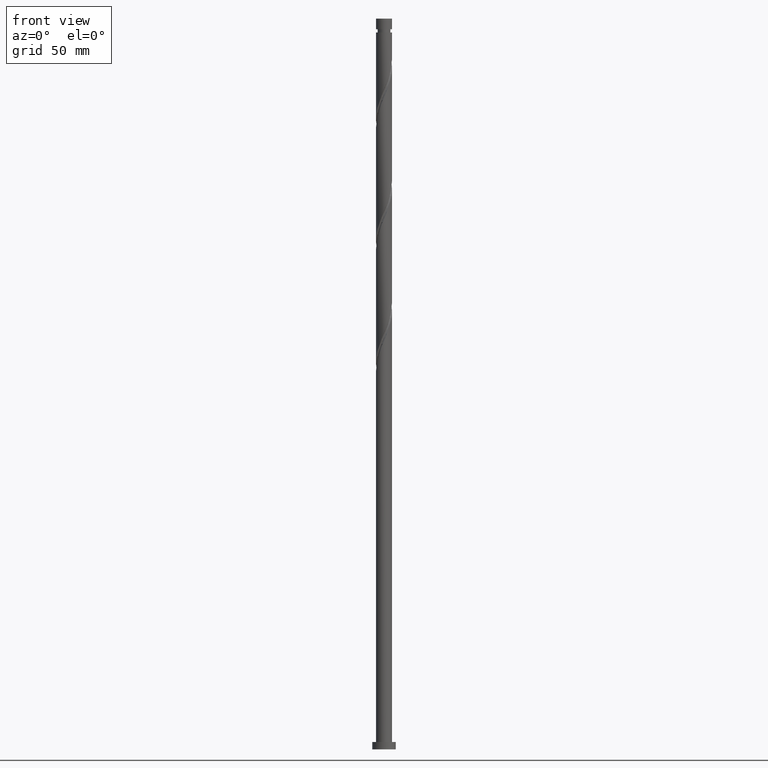
[diagram: clean part render]
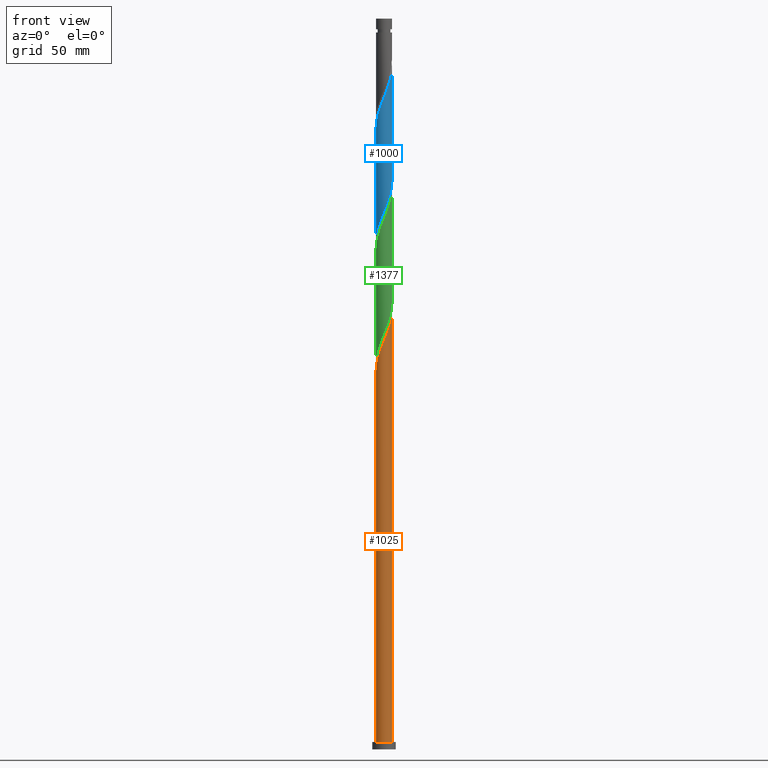
[diagram: same view with three faces highlighted in distinct colors, each labeled with its STEP entity id]
A machine part, front view with three faces highlighted in distinct colors.
Their STEP definitions:

[orange] entity #1025 — the highlighted cylindrical surface (edge-blend (fillet) strip) has radius 5.5 mm, axis along (-0, -0, -1).
#9 = VERTEX_POINT ( 'NONE', #334 ) ;
#10 = CARTESIAN_POINT ( 'NONE',  ( 4.884380654232723273, -2.585781788888787514, 293.8996440127714322 ) ) ;
#21 = CARTESIAN_POINT ( 'NONE',  ( -5.282202520096286769, -1.625354844912403340, 262.6496440127713754 ) ) ;
#113 = VERTEX_POINT ( 'NONE', #1037 ) ;
#126 = LINE ( 'NONE', #1419, #1482 ) ;
#173 = CARTESIAN_POINT ( 'NONE',  ( -3.488992111560462295, -4.286067647700003036, 270.4621440127713186 ) ) ;
#183 = CARTESIAN_POINT ( 'NONE',  ( 2.124992771417277826, -5.072908999915568984, 284.7850606794381747 ) ) ;
#190 = FACE_OUTER_BOUND ( 'NONE', #1524, .T. ) ;
#196 = CIRCLE ( 'NONE', #570, 5.500000000000000000 ) ;
#309 = LINE ( 'NONE', #1405, #773 ) ;
#334 = CARTESIAN_POINT ( 'NONE',  ( 5.500000000000000000, 6.735557395310442023E-16, 5.000000000000000000 ) ) ;
#336 = CARTESIAN_POINT ( 'NONE',  ( -5.497797479903720586, -0.5636175167221706417, 260.0454773461046898 ) ) ;
#348 = CARTESIAN_POINT ( 'NONE',  ( -4.560868951884520683, -3.073837081521374248, 266.5558940127713754 ) ) ;
#357 = VERTEX_POINT ( 'NONE', #1067 ) ;
#358 = CARTESIAN_POINT ( 'NONE',  ( 1.625354844912402896, -5.282202520096286769, 283.4829773461046329 ) ) ;
#363 = DIRECTION ( 'NONE',  ( -1.000000000000000000, 0.000000000000000000, 0.000000000000000000 ) ) ;
#427 = AXIS2_PLACEMENT_3D ( 'NONE', #1335, #1800, #363 ) ;
#497 = CARTESIAN_POINT ( 'NONE',  ( 5.500000000000003553, -6.743336730817932239E-15, 300.3573637014411588 ) ) ;
#518 = CARTESIAN_POINT ( 'NONE',  ( 0.02191910008341017499, -5.499956322831264011, 279.5767273461047466 ) ) ;
#531 = EDGE_CURVE ( 'NONE', #357, #978, #126, .T. ) ;
#570 = AXIS2_PLACEMENT_3D ( 'NONE', #937, #1300, #1590 ) ;
#600 = DIRECTION ( 'NONE',  ( -0.000000000000000000, -0.000000000000000000, -1.000000000000000000 ) ) ;
#617 = EDGE_CURVE ( 'NONE', #978, #9, #196, .T. ) ;
#625 =( BOUNDED_CURVE ( )  B_SPLINE_CURVE ( 2, ( #1012, #1042, #1783, #336, #1771, #21, #1470, #1321, #348, #976, #682, #173, #1794, #1958, #1159, #2103, #658, #1311, #518, #1626, #669, #358, #183, #987, #824, #1636, #1302, #1147, #834, #10, #1478, #1935, #1136, #1946, #497 ),
 .UNSPECIFIED., .F., .T. ) 
 B_SPLINE_CURVE_WITH_KNOTS ( ( 3, 2, 2, 2, 2, 2, 2, 2, 2, 2, 2, 2, 2, 2, 2, 2, 2, 3 ),
 ( 0.05452869021808723349, 0.05468750000000000000, 0.06250000000000000000, 0.07031250000000000000, 0.07812500000000000000, 0.08593750000000000000, 0.09375000000000000000, 0.1015625000000000000, 0.1093750000000000000, 0.1171875000000000000, 0.1250000000000000000, 0.1328125000000000000, 0.1406250000000000000, 0.1484375000000000000, 0.1562500000000000000, 0.1640625000000000000, 0.1718750000000000000, 0.1795286902180868449 ),
 .UNSPECIFIED. ) 
 CURVE ( )  GEOMETRIC_REPRESENTATION_ITEM ( )  RATIONAL_B_SPLINE_CURVE ( ( 0.9089165573359533346, 0.9090019243628580936, 0.9090909090909499168, 0.9047133878838560239, 0.9090909090909499168, 0.9047133878838560239, 0.9090909090909499168, 0.9047133878838560239, 0.9090909090909499168, 0.9047133878838560239, 0.9090909090909499168, 0.9047133878838560239, 0.9090909090909499168, 0.9047133878838560239, 0.9090909090909499168, 0.9047133878838560239, 0.9090909090909499168, 0.9047133878838560239, 0.9090909090909499168, 0.9047133878838560239, 0.9090909090909499168, 0.9047133878838560239, 0.9090909090909499168, 0.9047133878838560239, 0.9090909090909499168, 0.9047133878838560239, 0.9090909090909499168, 0.9047133878838560239, 0.9090909090909499168, 0.9047133878838560239, 0.9090909090909499168, 0.9047133878838560239, 0.9090909090909499168, 0.9048023726119480692, 0.9089165573359528905 ) ) 
 REPRESENTATION_ITEM ( '' )  );
#658 = CARTESIAN_POINT ( 'NONE',  ( -1.051490319374297044, -5.398552408587157458, 276.9725606794381179 ) ) ;
#669 = CARTESIAN_POINT ( 'NONE',  ( 1.094486180817286991, -5.390000000000004121, 282.1808940127714891 ) ) ;
#675 = CARTESIAN_POINT ( 'NONE',  ( -5.500000000000000000, 0.000000000000000000, 5.000000000000000000 ) ) ;
#682 = CARTESIAN_POINT ( 'NONE',  ( -3.873557267797328674, -3.904555556410300721, 269.1600606794380610 ) ) ;
#773 = VECTOR ( 'NONE', #600, 1000.000000000000000 ) ;
#776 = EDGE_CURVE ( 'NONE', #113, #9, #309, .T. ) ;
#778 = ORIENTED_EDGE ( 'NONE', *, *, #1075, .F. ) ;
#794 = ORIENTED_EDGE ( 'NONE', *, *, #531, .T. ) ;
#824 = CARTESIAN_POINT ( 'NONE',  ( 3.073837081521374248, -4.560868951884521572, 287.3892273461047466 ) ) ;
#834 = CARTESIAN_POINT ( 'NONE',  ( 4.585224150966364931, -3.037386950224624904, 292.5975606794381179 ) ) ;
#921 = DIRECTION ( 'NONE',  ( -0.000000000000000000, -0.000000000000000000, -1.000000000000000000 ) ) ;
#937 = CARTESIAN_POINT ( 'NONE',  ( 0.000000000000000000, 0.000000000000000000, 5.000000000000000000 ) ) ;
#976 = CARTESIAN_POINT ( 'NONE',  ( -4.258122424034190168, -3.523043465120600182, 267.8579773461046898 ) ) ;
#978 = VERTEX_POINT ( 'NONE', #675 ) ;
#987 = CARTESIAN_POINT ( 'NONE',  ( 2.624630697922147871, -4.863615479734852087, 286.0871440127713754 ) ) ;
#1012 = CARTESIAN_POINT ( 'NONE',  ( -5.500000000000004441, 4.672621665052668578E-15, 258.6906970347745869 ) ) ;
#1025 = ADVANCED_FACE ( 'NONE', ( #190 ), #1643, .T. ) ;
#1037 = CARTESIAN_POINT ( 'NONE',  ( 5.500000000000003553, -6.743336730817932239E-15, 300.3573637014411588 ) ) ;
#1042 = CARTESIAN_POINT ( 'NONE',  ( -5.500000000000005329, -0.01095959355843807541, 258.7170505892918868 ) ) ;
#1067 = CARTESIAN_POINT ( 'NONE',  ( -5.500000000000004441, 4.672621665052668578E-15, 258.6906970347745869 ) ) ;
#1075 = EDGE_CURVE ( 'NONE', #357, #113, #625, .T. ) ;
#1136 = CARTESIAN_POINT ( 'NONE',  ( 5.398552408587157458, -1.051490319374299265, 297.8058940127712617 ) ) ;
#1147 = CARTESIAN_POINT ( 'NONE',  ( 4.286067647700002148, -3.488992111560463183, 291.2954773461047466 ) ) ;
#1159 = CARTESIAN_POINT ( 'NONE',  ( -2.084491555541014840, -5.089685152824117154, 274.3683940127714891 ) ) ;
#1300 = DIRECTION ( 'NONE',  ( 0.000000000000000000, 0.000000000000000000, 1.000000000000000000 ) ) ;
#1302 = CARTESIAN_POINT ( 'NONE',  ( 3.904555556410300721, -3.873557267797329562, 289.9933940127714322 ) ) ;
#1311 = CARTESIAN_POINT ( 'NONE',  ( -0.5197793165553479255, -5.502115165758805659, 278.2746440127714891 ) ) ;
#1321 = CARTESIAN_POINT ( 'NONE',  ( -4.863615479734851199, -2.624630697922147871, 265.2538106794380610 ) ) ;
#1335 = CARTESIAN_POINT ( 'NONE',  ( 0.000000000000000000, 0.000000000000000000, 500.0000000000000000 ) ) ;
#1405 = CARTESIAN_POINT ( 'NONE',  ( 5.500000000000000000, 6.735557395310442023E-16, 500.0000000000000000 ) ) ;
#1419 = CARTESIAN_POINT ( 'NONE',  ( -5.500000000000000000, 0.000000000000000000, 500.0000000000000000 ) ) ;
#1470 = CARTESIAN_POINT ( 'NONE',  ( -5.072908999915568984, -2.124992771417276494, 263.9517273461046898 ) ) ;
#1471 = ORIENTED_EDGE ( 'NONE', *, *, #776, .F. ) ;
#1478 = CARTESIAN_POINT ( 'NONE',  ( 5.089685152824117154, -2.084491555541014840, 295.2017273461048035 ) ) ;
#1482 = VECTOR ( 'NONE', #921, 1000.000000000000000 ) ;
#1524 = EDGE_LOOP ( 'NONE', ( #1471, #778, #794, #1735 ) ) ;
#1590 = DIRECTION ( 'NONE',  ( 1.000000000000000000, 0.000000000000000000, 0.000000000000000000 ) ) ;
#1626 = CARTESIAN_POINT ( 'NONE',  ( 0.5636175167221705307, -5.497797479903720586, 280.8788106794381179 ) ) ;
#1636 = CARTESIAN_POINT ( 'NONE',  ( 3.523043465120600182, -4.258122424034191056, 288.6913106794381747 ) ) ;
#1643 = CYLINDRICAL_SURFACE ( 'NONE', #427, 5.500000000000000000 ) ;
#1735 = ORIENTED_EDGE ( 'NONE', *, *, #617, .T. ) ;
#1771 = CARTESIAN_POINT ( 'NONE',  ( -5.390000000000004121, -1.094486180817287213, 261.3475606794381179 ) ) ;
#1783 = CARTESIAN_POINT ( 'NONE',  ( -5.499956322831264011, -0.02191910008341166338, 258.7433940127714322 ) ) ;
#1794 = CARTESIAN_POINT ( 'NONE',  ( -3.037386950224624904, -4.585224150966364931, 271.7642273461048035 ) ) ;
#1800 = DIRECTION ( 'NONE',  ( -0.000000000000000000, -0.000000000000000000, -1.000000000000000000 ) ) ;
#1935 = CARTESIAN_POINT ( 'NONE',  ( 5.294989651415510146, -1.583201322193245941, 296.5038106794380610 ) ) ;
#1946 = CARTESIAN_POINT ( 'NONE',  ( 5.500000000000001776, -0.5306389821094230630, 299.0813835960251481 ) ) ;
#1958 = CARTESIAN_POINT ( 'NONE',  ( -2.585781788888784849, -4.884380654232723273, 273.0663106794381179 ) ) ;
#2103 = CARTESIAN_POINT ( 'NONE',  ( -1.583201322193245275, -5.294989651415510146, 275.6704773461047466 ) ) ;

[blue] entity #1000 — the highlighted cylindrical surface (edge-blend (fillet) strip) has radius 5.5 mm, axis along (-0, -0, -1).
#8 = ORIENTED_EDGE ( 'NONE', *, *, #1392, .F. ) ;
#16 = CARTESIAN_POINT ( 'NONE',  ( 5.500000000000000000, 3.802213082053248887E-15, 389.0044243241015351 ) ) ;
#39 = CARTESIAN_POINT ( 'NONE',  ( -5.500000000000000000, 0.000000000000000000, 500.0000000000000000 ) ) ;
#40 = CARTESIAN_POINT ( 'NONE',  ( 5.389999999999999680, -1.094486180817288101, 386.3475606794380042 ) ) ;
#59 = CARTESIAN_POINT ( 'NONE',  ( -0.5197793165553479255, -5.502115165758805659, 444.9413106794379473 ) ) ;
#64 = CARTESIAN_POINT ( 'NONE',  ( 3.873557267797324233, -3.904555556410298500, 378.5350606794382315 ) ) ;
#68 =( BOUNDED_CURVE ( )  B_SPLINE_CURVE ( 2, ( #16, #1965, #1495, #1955, #40, #524, #1166, #1801, #1553, #1514, #64, #1355, #76, #1996, #1366, #550, #561, #1271, #134, #1930, #265, #1284, #440, #1920, #1720, #2057, #1079, #279, #1610, #906, #798, #1570, #610, #1403, #1255 ),
 .UNSPECIFIED., .F., .T. ) 
 B_SPLINE_CURVE_WITH_KNOTS ( ( 3, 2, 2, 2, 2, 2, 2, 2, 2, 2, 2, 2, 2, 2, 2, 2, 2, 3 ),
 ( 0.5545286902180870392, 0.5546875000000000000, 0.5625000000000000000, 0.5703125000000000000, 0.5781250000000000000, 0.5859375000000000000, 0.5937500000000000000, 0.6015625000000000000, 0.6093750000000000000, 0.6171875000000000000, 0.6250000000000000000, 0.6328125000000000000, 0.6406250000000000000, 0.6484375000000000000, 0.6562500000000000000, 0.6640625000000000000, 0.6718750000000000000, 0.6795286902180887045 ),
 .UNSPECIFIED. ) 
 CURVE ( )  GEOMETRIC_REPRESENTATION_ITEM ( )  RATIONAL_B_SPLINE_CURVE ( ( 0.9089165573359484496, 0.9090019243628533196, 0.9090909090909452539, 0.9047133878838512500, 0.9090909090909452539, 0.9047133878838512500, 0.9090909090909452539, 0.9047133878838512500, 0.9090909090909452539, 0.9047133878838512500, 0.9090909090909452539, 0.9047133878838512500, 0.9090909090909452539, 0.9047133878838512500, 0.9090909090909452539, 0.9047133878838512500, 0.9090909090909452539, 0.9047133878838512500, 0.9090909090909452539, 0.9047133878838512500, 0.9090909090909452539, 0.9047133878838512500, 0.9090909090909452539, 0.9047133878838512500, 0.9090909090909452539, 0.9047133878838512500, 0.9090909090909452539, 0.9047133878838512500, 0.9090909090909452539, 0.9047133878838512500, 0.9090909090909452539, 0.9047133878838512500, 0.9090909090909452539, 0.9048023726119421850, 0.9089165573359502259 ) ) 
 REPRESENTATION_ITEM ( '' )  );
#70 = CARTESIAN_POINT ( 'NONE',  ( 3.523043465120600182, -4.258122424034191056, 455.3579773461046329 ) ) ;
#76 = CARTESIAN_POINT ( 'NONE',  ( 3.037386950224620463, -4.585224150966358714, 375.9308940127714322 ) ) ;
#87 = CARTESIAN_POINT ( 'NONE',  ( -5.072908999915568984, -2.124992771417276494, 430.6183940127714322 ) ) ;
#130 = VERTEX_POINT ( 'NONE', #1371 ) ;
#132 = DIRECTION ( 'NONE',  ( -0.000000000000000000, -0.000000000000000000, -1.000000000000000000 ) ) ;
#134 = CARTESIAN_POINT ( 'NONE',  ( -0.02191910008341204155, -5.499956322831258682, 368.1183940127714891 ) ) ;
#153 = ORIENTED_EDGE ( 'NONE', *, *, #1122, .F. ) ;
#193 = CARTESIAN_POINT ( 'NONE',  ( 5.500000000000000000, 3.802213082053248887E-15, 389.0044243241015351 ) ) ;
#207 = CARTESIAN_POINT ( 'NONE',  ( -3.873557267797328674, -3.904555556410300721, 435.8267273461046329 ) ) ;
#227 = CARTESIAN_POINT ( 'NONE',  ( -2.084491555541014840, -5.089685152824117154, 441.0350606794380042 ) ) ;
#252 = CARTESIAN_POINT ( 'NONE',  ( 5.500000000000008882, -0.5306389821093718817, 465.7480502626920611 ) ) ;
#265 = CARTESIAN_POINT ( 'NONE',  ( -1.094486180817287657, -5.389999999999999680, 365.5142273461047466 ) ) ;
#268 = LINE ( 'NONE', #944, #467 ) ;
#279 = CARTESIAN_POINT ( 'NONE',  ( -4.286067647699998595, -3.488992111560460074, 356.3996440127714322 ) ) ;
#354 = CARTESIAN_POINT ( 'NONE',  ( 0.000000000000000000, 0.000000000000000000, 500.0000000000000000 ) ) ;
#372 = AXIS2_PLACEMENT_3D ( 'NONE', #354, #699, #991 ) ;
#440 = CARTESIAN_POINT ( 'NONE',  ( -2.124992771417276494, -5.072908999915564543, 362.9100606794381747 ) ) ;
#467 = VECTOR ( 'NONE', #1428, 1000.000000000000000 ) ;
#478 = CARTESIAN_POINT ( 'NONE',  ( 5.500000000000005329, 9.188681614961969958E-16, 467.0240303681078444 ) ) ;
#524 = CARTESIAN_POINT ( 'NONE',  ( 5.282202520096280551, -1.625354844912400898, 385.0454773461047466 ) ) ;
#529 = CARTESIAN_POINT ( 'NONE',  ( -4.258122424034190168, -3.523043465120600182, 434.5246440127713186 ) ) ;
#536 = CARTESIAN_POINT ( 'NONE',  ( -5.390000000000004121, -1.094486180817287213, 428.0142273461047466 ) ) ;
#545 = CARTESIAN_POINT ( 'NONE',  ( 1.625354844912402896, -5.282202520096286769, 450.1496440127713186 ) ) ;
#550 = CARTESIAN_POINT ( 'NONE',  ( 1.583201322193242389, -5.294989651415503928, 372.0246440127713754 ) ) ;
#554 = CARTESIAN_POINT ( 'NONE',  ( 4.585224150966364931, -3.037386950224624904, 459.2642273461046898 ) ) ;
#561 = CARTESIAN_POINT ( 'NONE',  ( 1.051490319374294158, -5.398552408587153906, 370.7225606794381179 ) ) ;
#610 = CARTESIAN_POINT ( 'NONE',  ( -5.398552408587152129, -1.051490319374294602, 349.8892273461047466 ) ) ;
#637 = CARTESIAN_POINT ( 'NONE',  ( -5.497797479903720586, -0.5636175167221706417, 426.7121440127713754 ) ) ;
#699 = DIRECTION ( 'NONE',  ( -0.000000000000000000, -0.000000000000000000, -1.000000000000000000 ) ) ;
#706 = CARTESIAN_POINT ( 'NONE',  ( -3.488992111560462295, -4.286067647700003036, 437.1288106794378905 ) ) ;
#723 = CARTESIAN_POINT ( 'NONE',  ( 3.904555556410300721, -3.873557267797329562, 456.6600606794380610 ) ) ;
#733 = CARTESIAN_POINT ( 'NONE',  ( -1.051490319374297044, -5.398552408587157458, 443.6392273461046329 ) ) ;
#798 = CARTESIAN_POINT ( 'NONE',  ( -5.089685152824111825, -2.084491555541011287, 352.4933940127713186 ) ) ;
#863 = CARTESIAN_POINT ( 'NONE',  ( -5.282202520096286769, -1.625354844912403340, 429.3163106794380042 ) ) ;
#871 = CARTESIAN_POINT ( 'NONE',  ( 3.073837081521374248, -4.560868951884521572, 454.0558940127713754 ) ) ;
#906 = CARTESIAN_POINT ( 'NONE',  ( -4.884380654232720609, -2.585781788888781740, 353.7954773461047466 ) ) ;
#944 = CARTESIAN_POINT ( 'NONE',  ( 5.500000000000000000, 6.735557395310442023E-16, 500.0000000000000000 ) ) ;
#991 = DIRECTION ( 'NONE',  ( -1.000000000000000000, 0.000000000000000000, 0.000000000000000000 ) ) ;
#1000 = ADVANCED_FACE ( 'NONE', ( #1954 ), #1791, .T. ) ;
#1008 = CARTESIAN_POINT ( 'NONE',  ( -4.863615479734851199, -2.624630697922147871, 431.9204773461046329 ) ) ;
#1027 = CARTESIAN_POINT ( 'NONE',  ( 2.124992771417277826, -5.072908999915568984, 451.4517273461046898 ) ) ;
#1079 = CARTESIAN_POINT ( 'NONE',  ( -3.904555556410298500, -3.873557267797324233, 357.7017273461047466 ) ) ;
#1122 = EDGE_CURVE ( 'NONE', #130, #2100, #268, .T. ) ;
#1166 = CARTESIAN_POINT ( 'NONE',  ( 5.072908999915563655, -2.124992771417276938, 383.7433940127713754 ) ) ;
#1175 = CARTESIAN_POINT ( 'NONE',  ( -4.560868951884520683, -3.073837081521374248, 433.2225606794380042 ) ) ;
#1189 = EDGE_CURVE ( 'NONE', #1936, #2047, #2017, .T. ) ;
#1200 = CARTESIAN_POINT ( 'NONE',  ( 4.884380654232723273, -2.585781788888787514, 460.5663106794379473 ) ) ;
#1255 = CARTESIAN_POINT ( 'NONE',  ( -5.500000000000000000, 1.958139737257419718E-13, 347.3377576574344516 ) ) ;
#1271 = CARTESIAN_POINT ( 'NONE',  ( 0.5197793165553451500, -5.502115165758797666, 369.4204773461047466 ) ) ;
#1284 = CARTESIAN_POINT ( 'NONE',  ( -1.625354844912403118, -5.282202520096279663, 364.2121440127713754 ) ) ;
#1337 = CARTESIAN_POINT ( 'NONE',  ( -5.500000000000000000, 1.958139737257419718E-13, 347.3377576574343948 ) ) ;
#1341 = CARTESIAN_POINT ( 'NONE',  ( -2.585781788888784849, -4.884380654232723273, 439.7329773461047466 ) ) ;
#1351 = CARTESIAN_POINT ( 'NONE',  ( 0.5636175167221705307, -5.497797479903720586, 447.5454773461046329 ) ) ;
#1355 = CARTESIAN_POINT ( 'NONE',  ( 3.488992111560457410, -4.286067647700001260, 377.2329773461047466 ) ) ;
#1360 = CARTESIAN_POINT ( 'NONE',  ( 4.286067647700002148, -3.488992111560463183, 457.9621440127713186 ) ) ;
#1366 = CARTESIAN_POINT ( 'NONE',  ( 2.084491555541011287, -5.089685152824112713, 373.3267273461048035 ) ) ;
#1371 = CARTESIAN_POINT ( 'NONE',  ( 5.500000000000004441, 9.188681614961969958E-16, 467.0240303681078444 ) ) ;
#1379 = CARTESIAN_POINT ( 'NONE',  ( 5.089685152824117154, -2.084491555541014840, 461.8683940127713754 ) ) ;
#1392 = EDGE_CURVE ( 'NONE', #2100, #2047, #68, .T. ) ;
#1403 = CARTESIAN_POINT ( 'NONE',  ( -5.500000000000020428, -0.5306389821092928338, 348.6137377628506897 ) ) ;
#1420 =( BOUNDED_CURVE ( )  B_SPLINE_CURVE ( 2, ( #1597, #1443, #2083, #637, #536, #863, #87, #1008, #1175, #529, #207, #706, #1833, #1341, #227, #1509, #733, #59, #2012, #1351, #1984, #545, #1027, #1673, #871, #70, #723, #1360, #554, #1200, #1379, #1444, #1766, #252, #478 ),
 .UNSPECIFIED., .F., .T. ) 
 B_SPLINE_CURVE_WITH_KNOTS ( ( 3, 2, 2, 2, 2, 2, 2, 2, 2, 2, 2, 2, 2, 2, 2, 2, 2, 3 ),
 ( 0.5545286902180870392, 0.5546875000000000000, 0.5625000000000000000, 0.5703125000000000000, 0.5781250000000000000, 0.5859375000000000000, 0.5937500000000000000, 0.6015625000000000000, 0.6093750000000000000, 0.6171875000000000000, 0.6250000000000000000, 0.6328125000000000000, 0.6406250000000000000, 0.6484375000000000000, 0.6562500000000000000, 0.6640625000000000000, 0.6718750000000000000, 0.6795286902180875943 ),
 .UNSPECIFIED. ) 
 CURVE ( )  GEOMETRIC_REPRESENTATION_ITEM ( )  RATIONAL_B_SPLINE_CURVE ( ( 0.9089165573359532235, 0.9090019243628580936, 0.9090909090909499168, 0.9047133878838560239, 0.9090909090909499168, 0.9047133878838560239, 0.9090909090909499168, 0.9047133878838560239, 0.9090909090909499168, 0.9047133878838560239, 0.9090909090909499168, 0.9047133878838560239, 0.9090909090909499168, 0.9047133878838560239, 0.9090909090909499168, 0.9047133878838560239, 0.9090909090909499168, 0.9047133878838560239, 0.9090909090909499168, 0.9047133878838560239, 0.9090909090909499168, 0.9047133878838560239, 0.9090909090909499168, 0.9047133878838560239, 0.9090909090909499168, 0.9047133878838560239, 0.9090909090909499168, 0.9047133878838560239, 0.9090909090909499168, 0.9047133878838560239, 0.9090909090909499168, 0.9047133878838560239, 0.9090909090909499168, 0.9048023726119476251, 0.9089165573359537786 ) ) 
 REPRESENTATION_ITEM ( '' )  );
#1428 = DIRECTION ( 'NONE',  ( -0.000000000000000000, -0.000000000000000000, -1.000000000000000000 ) ) ;
#1443 = CARTESIAN_POINT ( 'NONE',  ( -5.500000000000005329, -0.01095959355842466600, 425.3837172559582882 ) ) ;
#1444 = CARTESIAN_POINT ( 'NONE',  ( 5.294989651415510146, -1.583201322193245941, 463.1704773461046329 ) ) ;
#1495 = CARTESIAN_POINT ( 'NONE',  ( 5.499956322831258682, -0.02191910008341246135, 388.9517273461047466 ) ) ;
#1509 = CARTESIAN_POINT ( 'NONE',  ( -1.583201322193245275, -5.294989651415510146, 442.3371440127713186 ) ) ;
#1514 = CARTESIAN_POINT ( 'NONE',  ( 4.258122424034185727, -3.523043465120597517, 379.8371440127714322 ) ) ;
#1553 = CARTESIAN_POINT ( 'NONE',  ( 4.560868951884516243, -3.073837081521375136, 381.1392273461046329 ) ) ;
#1565 = ORIENTED_EDGE ( 'NONE', *, *, #1189, .T. ) ;
#1570 = CARTESIAN_POINT ( 'NONE',  ( -5.294989651415505705, -1.583201322193242611, 351.1913106794380610 ) ) ;
#1597 = CARTESIAN_POINT ( 'NONE',  ( -5.500000000000005329, -2.985855567377094265E-15, 425.3573637014411020 ) ) ;
#1610 = CARTESIAN_POINT ( 'NONE',  ( -4.585224150966357826, -3.037386950224620907, 355.0975606794380610 ) ) ;
#1628 = EDGE_CURVE ( 'NONE', #1936, #130, #1420, .T. ) ;
#1673 = CARTESIAN_POINT ( 'NONE',  ( 2.624630697922147871, -4.863615479734852087, 452.7538106794380042 ) ) ;
#1720 = CARTESIAN_POINT ( 'NONE',  ( -3.073837081521372472, -4.560868951884518907, 360.3058940127714322 ) ) ;
#1757 = EDGE_LOOP ( 'NONE', ( #153, #1830, #1565, #8 ) ) ;
#1766 = CARTESIAN_POINT ( 'NONE',  ( 5.398552408587157458, -1.051490319374299265, 464.4725606794380042 ) ) ;
#1775 = VECTOR ( 'NONE', #132, 1000.000000000000000 ) ;
#1791 = CYLINDRICAL_SURFACE ( 'NONE', #372, 5.500000000000000000 ) ;
#1801 = CARTESIAN_POINT ( 'NONE',  ( 4.863615479734846758, -2.624630697922147871, 382.4413106794381179 ) ) ;
#1830 = ORIENTED_EDGE ( 'NONE', *, *, #1628, .F. ) ;
#1833 = CARTESIAN_POINT ( 'NONE',  ( -3.037386950224624904, -4.585224150966364931, 438.4308940127714322 ) ) ;
#1920 = CARTESIAN_POINT ( 'NONE',  ( -2.624630697922146982, -4.863615479734846758, 361.6079773461046898 ) ) ;
#1930 = CARTESIAN_POINT ( 'NONE',  ( -0.5636175167221719740, -5.497797479903716145, 366.8163106794381179 ) ) ;
#1936 = VERTEX_POINT ( 'NONE', #2037 ) ;
#1954 = FACE_OUTER_BOUND ( 'NONE', #1757, .T. ) ;
#1955 = CARTESIAN_POINT ( 'NONE',  ( 5.497797479903715256, -0.5636175167221745275, 387.6496440127714891 ) ) ;
#1965 = CARTESIAN_POINT ( 'NONE',  ( 5.500000000000000888, -0.01095959355842550387, 388.9780707695842352 ) ) ;
#1984 = CARTESIAN_POINT ( 'NONE',  ( 1.094486180817286991, -5.390000000000004121, 448.8475606794380042 ) ) ;
#1996 = CARTESIAN_POINT ( 'NONE',  ( 2.585781788888781740, -4.884380654232720609, 374.6288106794381747 ) ) ;
#2012 = CARTESIAN_POINT ( 'NONE',  ( 0.02191910008341017499, -5.499956322831264011, 446.2433940127712617 ) ) ;
#2017 = LINE ( 'NONE', #39, #1775 ) ;
#2037 = CARTESIAN_POINT ( 'NONE',  ( -5.500000000000005329, -2.985855567377094265E-15, 425.3573637014411020 ) ) ;
#2047 = VERTEX_POINT ( 'NONE', #1337 ) ;
#2057 = CARTESIAN_POINT ( 'NONE',  ( -3.523043465120596629, -4.258122424034185727, 359.0038106794380610 ) ) ;
#2083 = CARTESIAN_POINT ( 'NONE',  ( -5.499956322831264011, -0.02191910008341166338, 425.4100606794380042 ) ) ;
#2100 = VERTEX_POINT ( 'NONE', #193 ) ;

[green] entity #1377 — the highlighted cylindrical surface (edge-blend (fillet) strip) has radius 5.5 mm, axis along (-0, -0, -1).
#24 = VECTOR ( 'NONE', #760, 1000.000000000000000 ) ;
#34 = CARTESIAN_POINT ( 'NONE',  ( -5.500000000000000000, 1.804877001111714854E-13, 264.0044243241010804 ) ) ;
#60 = CARTESIAN_POINT ( 'NONE',  ( -5.500000000000015099, -0.5306389821093080439, 265.2804044295173753 ) ) ;
#66 = CARTESIAN_POINT ( 'NONE',  ( 0.5197793165553451500, -5.502115165758797666, 286.0871440127714322 ) ) ;
#83 = EDGE_CURVE ( 'NONE', #1084, #192, #1154, .T. ) ;
#100 = CARTESIAN_POINT ( 'NONE',  ( 1.051490319374294158, -5.398552408587153906, 287.3892273461046898 ) ) ;
#109 = CARTESIAN_POINT ( 'NONE',  ( 5.389999999999999680, -1.094486180817288101, 303.0142273461048603 ) ) ;
#128 = CARTESIAN_POINT ( 'NONE',  ( -3.037386950224624904, -4.585224150966364931, 355.0975606794381179 ) ) ;
#140 = CARTESIAN_POINT ( 'NONE',  ( 5.398552408587157458, -1.051490319374299265, 381.1392273461046329 ) ) ;
#148 = CARTESIAN_POINT ( 'NONE',  ( -5.500000000000004441, 4.672621665052668578E-15, 342.0240303681078444 ) ) ;
#150 = CARTESIAN_POINT ( 'NONE',  ( 3.904555556410300721, -3.873557267797329562, 373.3267273461046329 ) ) ;
#161 = CARTESIAN_POINT ( 'NONE',  ( -5.500000000000005329, -0.01095959355840550944, 342.0503839226250307 ) ) ;
#168 = DIRECTION ( 'NONE',  ( -0.000000000000000000, -0.000000000000000000, -1.000000000000000000 ) ) ;
#192 = VERTEX_POINT ( 'NONE', #585 ) ;
#219 = CARTESIAN_POINT ( 'NONE',  ( -5.089685152824111825, -2.084491555541011287, 269.1600606794381747 ) ) ;
#255 = CARTESIAN_POINT ( 'NONE',  ( 5.072908999915563655, -2.124992771417276938, 300.4100606794381179 ) ) ;
#273 = CARTESIAN_POINT ( 'NONE',  ( 5.500000000000002665, -0.5306389821094172898, 382.4147169293584057 ) ) ;
#302 = CARTESIAN_POINT ( 'NONE',  ( 4.286067647700002148, -3.488992111560463183, 374.6288106794380610 ) ) ;
#324 = CARTESIAN_POINT ( 'NONE',  ( 2.624630697922147871, -4.863615479734852087, 369.4204773461046898 ) ) ;
#434 = CARTESIAN_POINT ( 'NONE',  ( 5.294989651415510146, -1.583201322193245941, 379.8371440127713754 ) ) ;
#439 = CARTESIAN_POINT ( 'NONE',  ( 1.583201322193242389, -5.294989651415503928, 288.6913106794380610 ) ) ;
#444 = CARTESIAN_POINT ( 'NONE',  ( 5.499956322831258682, -0.02191910008341246135, 305.6183940127714891 ) ) ;
#451 = CARTESIAN_POINT ( 'NONE',  ( 5.500000000000003553, -6.743336730817932239E-15, 383.6906970347743595 ) ) ;
#481 = ORIENTED_EDGE ( 'NONE', *, *, #83, .F. ) ;
#491 =( BOUNDED_CURVE ( )  B_SPLINE_CURVE ( 2, ( #1087, #161, #2051, #1233, #1411, #1434, #605, #1604, #1450, #1576, #1276, #1726, #128, #2090, #616, #1926, #1913, #782, #1129, #1263, #1875, #1900, #1100, #324, #1739, #1074, #150, #302, #1592, #963, #1115, #434, #140, #273, #914 ),
 .UNSPECIFIED., .F., .T. ) 
 B_SPLINE_CURVE_WITH_KNOTS ( ( 3, 2, 2, 2, 2, 2, 2, 2, 2, 2, 2, 2, 2, 2, 2, 2, 2, 3 ),
 ( 0.3045286902180867616, 0.3046875000000000000, 0.3125000000000000000, 0.3203125000000000000, 0.3281250000000000000, 0.3359375000000000000, 0.3437500000000000000, 0.3515625000000000000, 0.3593750000000000000, 0.3671875000000000000, 0.3750000000000000000, 0.3828125000000000000, 0.3906250000000000000, 0.3984375000000000000, 0.4062500000000000000, 0.4140625000000000000, 0.4218750000000000000, 0.4295286902180869282 ),
 .UNSPECIFIED. ) 
 CURVE ( )  GEOMETRIC_REPRESENTATION_ITEM ( )  RATIONAL_B_SPLINE_CURVE ( ( 0.9089165573359528905, 0.9090019243628578716, 0.9090909090909499168, 0.9047133878838560239, 0.9090909090909499168, 0.9047133878838560239, 0.9090909090909499168, 0.9047133878838560239, 0.9090909090909499168, 0.9047133878838560239, 0.9090909090909499168, 0.9047133878838560239, 0.9090909090909499168, 0.9047133878838560239, 0.9090909090909499168, 0.9047133878838560239, 0.9090909090909499168, 0.9047133878838560239, 0.9090909090909499168, 0.9047133878838560239, 0.9090909090909499168, 0.9047133878838560239, 0.9090909090909499168, 0.9047133878838560239, 0.9090909090909499168, 0.9047133878838560239, 0.9090909090909499168, 0.9047133878838560239, 0.9090909090909499168, 0.9047133878838560239, 0.9090909090909499168, 0.9047133878838560239, 0.9090909090909499168, 0.9048023726119479582, 0.9089165573359530015 ) ) 
 REPRESENTATION_ITEM ( '' )  );
#502 = DIRECTION ( 'NONE',  ( -1.000000000000000000, 0.000000000000000000, 0.000000000000000000 ) ) ;
#507 = CARTESIAN_POINT ( 'NONE',  ( 5.500000000000000000, 3.802213082053248887E-15, 305.6710909907682208 ) ) ;
#576 = CARTESIAN_POINT ( 'NONE',  ( -5.500000000000000000, 0.000000000000000000, 500.0000000000000000 ) ) ;
#582 = CARTESIAN_POINT ( 'NONE',  ( -0.02191910008341204155, -5.499956322831258682, 284.7850606794381179 ) ) ;
#585 = CARTESIAN_POINT ( 'NONE',  ( -5.500000000000000000, 1.804877001111714854E-13, 264.0044243241010804 ) ) ;
#596 = CARTESIAN_POINT ( 'NONE',  ( 3.873557267797324233, -3.904555556410298500, 295.2017273461046898 ) ) ;
#605 = CARTESIAN_POINT ( 'NONE',  ( -5.072908999915568984, -2.124992771417276494, 347.2850606794381747 ) ) ;
#616 = CARTESIAN_POINT ( 'NONE',  ( -2.084491555541014840, -5.089685152824117154, 357.7017273461046898 ) ) ;
#659 = VERTEX_POINT ( 'NONE', #148 ) ;
#665 = FACE_OUTER_BOUND ( 'NONE', #973, .T. ) ;
#676 = CARTESIAN_POINT ( 'NONE',  ( 0.000000000000000000, 0.000000000000000000, 500.0000000000000000 ) ) ;
#717 = CARTESIAN_POINT ( 'NONE',  ( -4.286067647699998595, -3.488992111560460074, 273.0663106794381179 ) ) ;
#730 = ORIENTED_EDGE ( 'NONE', *, *, #1344, .F. ) ;
#754 = CARTESIAN_POINT ( 'NONE',  ( -0.5636175167221719740, -5.497797479903716145, 283.4829773461047466 ) ) ;
#760 = DIRECTION ( 'NONE',  ( -0.000000000000000000, -0.000000000000000000, -1.000000000000000000 ) ) ;
#764 = CARTESIAN_POINT ( 'NONE',  ( 5.282202520096280551, -1.625354844912400898, 301.7121440127714891 ) ) ;
#782 = CARTESIAN_POINT ( 'NONE',  ( -0.5197793165553479255, -5.502115165758805659, 361.6079773461047466 ) ) ;
#880 = CARTESIAN_POINT ( 'NONE',  ( -5.294989651415505705, -1.583201322193242611, 267.8579773461047466 ) ) ;
#898 = CARTESIAN_POINT ( 'NONE',  ( 2.084491555541011287, -5.089685152824112713, 289.9933940127714322 ) ) ;
#914 = CARTESIAN_POINT ( 'NONE',  ( 5.500000000000003553, -6.743336730817932239E-15, 383.6906970347744164 ) ) ;
#963 = CARTESIAN_POINT ( 'NONE',  ( 4.884380654232723273, -2.585781788888787514, 377.2329773461047466 ) ) ;
#973 = EDGE_LOOP ( 'NONE', ( #1173, #730, #1298, #481 ) ) ;
#1009 = CARTESIAN_POINT ( 'NONE',  ( -3.523043465120596629, -4.258122424034185727, 275.6704773461047466 ) ) ;
#1057 = CARTESIAN_POINT ( 'NONE',  ( 4.560868951884516243, -3.073837081521375136, 297.8058940127713754 ) ) ;
#1074 = CARTESIAN_POINT ( 'NONE',  ( 3.523043465120600182, -4.258122424034191056, 372.0246440127713754 ) ) ;
#1084 = VERTEX_POINT ( 'NONE', #507 ) ;
#1087 = CARTESIAN_POINT ( 'NONE',  ( -5.500000000000004441, 4.672621665052668578E-15, 342.0240303681078444 ) ) ;
#1100 = CARTESIAN_POINT ( 'NONE',  ( 2.124992771417277826, -5.072908999915568984, 368.1183940127712049 ) ) ;
#1115 = CARTESIAN_POINT ( 'NONE',  ( 5.089685152824117154, -2.084491555541014840, 378.5350606794380042 ) ) ;
#1129 = CARTESIAN_POINT ( 'NONE',  ( 0.02191910008341017499, -5.499956322831264011, 362.9100606794380610 ) ) ;
#1154 =( BOUNDED_CURVE ( )  B_SPLINE_CURVE ( 2, ( #1884, #1260, #444, #1897, #109, #764, #255, #1866, #1057, #1700, #596, #1552, #1239, #1881, #898, #439, #100, #66, #582, #754, #1393, #2032, #1163, #1193, #1818, #1009, #1675, #717, #1510, #1973, #219, #880, #1985, #60, #34 ),
 .UNSPECIFIED., .F., .T. ) 
 B_SPLINE_CURVE_WITH_KNOTS ( ( 3, 2, 2, 2, 2, 2, 2, 2, 2, 2, 2, 2, 2, 2, 2, 2, 2, 3 ),
 ( 0.8045286902180873723, 0.8046875000000000000, 0.8125000000000000000, 0.8203125000000000000, 0.8281250000000000000, 0.8359375000000000000, 0.8437500000000000000, 0.8515625000000000000, 0.8593750000000000000, 0.8671875000000000000, 0.8750000000000000000, 0.8828125000000000000, 0.8906250000000000000, 0.8984375000000000000, 0.9062500000000000000, 0.9140625000000000000, 0.9218750000000000000, 0.9295286902180884825 ),
 .UNSPECIFIED. ) 
 CURVE ( )  GEOMETRIC_REPRESENTATION_ITEM ( )  RATIONAL_B_SPLINE_CURVE ( ( 0.9089165573359487826, 0.9090019243628535417, 0.9090909090909452539, 0.9047133878838512500, 0.9090909090909452539, 0.9047133878838512500, 0.9090909090909452539, 0.9047133878838512500, 0.9090909090909452539, 0.9047133878838512500, 0.9090909090909452539, 0.9047133878838512500, 0.9090909090909452539, 0.9047133878838512500, 0.9090909090909452539, 0.9047133878838512500, 0.9090909090909452539, 0.9047133878838512500, 0.9090909090909452539, 0.9047133878838512500, 0.9090909090909452539, 0.9047133878838512500, 0.9090909090909452539, 0.9047133878838512500, 0.9090909090909452539, 0.9047133878838512500, 0.9090909090909452539, 0.9047133878838512500, 0.9090909090909452539, 0.9047133878838512500, 0.9090909090909452539, 0.9047133878838512500, 0.9090909090909452539, 0.9048023726119424071, 0.9089165573359501149 ) ) 
 REPRESENTATION_ITEM ( '' )  );
#1163 = CARTESIAN_POINT ( 'NONE',  ( -2.124992771417276494, -5.072908999915564543, 279.5767273461047466 ) ) ;
#1173 = ORIENTED_EDGE ( 'NONE', *, *, #1823, .F. ) ;
#1193 = CARTESIAN_POINT ( 'NONE',  ( -2.624630697922146982, -4.863615479734846758, 278.2746440127714322 ) ) ;
#1233 = CARTESIAN_POINT ( 'NONE',  ( -5.497797479903720586, -0.5636175167221706417, 343.3788106794380610 ) ) ;
#1239 = CARTESIAN_POINT ( 'NONE',  ( 3.037386950224620463, -4.585224150966358714, 292.5975606794380610 ) ) ;
#1260 = CARTESIAN_POINT ( 'NONE',  ( 5.500000000000000888, -0.01095959355844849242, 305.6447374362509777 ) ) ;
#1263 = CARTESIAN_POINT ( 'NONE',  ( 0.5636175167221705307, -5.497797479903720586, 364.2121440127713186 ) ) ;
#1276 = CARTESIAN_POINT ( 'NONE',  ( -3.873557267797328674, -3.904555556410300721, 352.4933940127714322 ) ) ;
#1277 = VERTEX_POINT ( 'NONE', #451 ) ;
#1282 = VECTOR ( 'NONE', #168, 1000.000000000000000 ) ;
#1298 = ORIENTED_EDGE ( 'NONE', *, *, #1674, .T. ) ;
#1327 = DIRECTION ( 'NONE',  ( -0.000000000000000000, -0.000000000000000000, -1.000000000000000000 ) ) ;
#1344 = EDGE_CURVE ( 'NONE', #659, #1277, #491, .T. ) ;
#1377 = ADVANCED_FACE ( 'NONE', ( #665 ), #1978, .T. ) ;
#1393 = CARTESIAN_POINT ( 'NONE',  ( -1.094486180817287657, -5.389999999999999680, 282.1808940127714322 ) ) ;
#1411 = CARTESIAN_POINT ( 'NONE',  ( -5.390000000000004121, -1.094486180817287213, 344.6808940127713754 ) ) ;
#1434 = CARTESIAN_POINT ( 'NONE',  ( -5.282202520096286769, -1.625354844912403340, 345.9829773461047466 ) ) ;
#1450 = CARTESIAN_POINT ( 'NONE',  ( -4.560868951884520683, -3.073837081521374248, 349.8892273461047466 ) ) ;
#1454 = AXIS2_PLACEMENT_3D ( 'NONE', #676, #1327, #502 ) ;
#1510 = CARTESIAN_POINT ( 'NONE',  ( -4.585224150966357826, -3.037386950224620907, 271.7642273461047466 ) ) ;
#1552 = CARTESIAN_POINT ( 'NONE',  ( 3.488992111560457410, -4.286067647700001260, 293.8996440127713186 ) ) ;
#1576 = CARTESIAN_POINT ( 'NONE',  ( -4.258122424034190168, -3.523043465120600182, 351.1913106794381179 ) ) ;
#1592 = CARTESIAN_POINT ( 'NONE',  ( 4.585224150966364931, -3.037386950224624904, 375.9308940127713186 ) ) ;
#1599 = CARTESIAN_POINT ( 'NONE',  ( 5.500000000000000000, 6.735557395310442023E-16, 500.0000000000000000 ) ) ;
#1604 = CARTESIAN_POINT ( 'NONE',  ( -4.863615479734851199, -2.624630697922147871, 348.5871440127713754 ) ) ;
#1674 = EDGE_CURVE ( 'NONE', #659, #192, #1876, .T. ) ;
#1675 = CARTESIAN_POINT ( 'NONE',  ( -3.904555556410298500, -3.873557267797324233, 274.3683940127714891 ) ) ;
#1700 = CARTESIAN_POINT ( 'NONE',  ( 4.258122424034185727, -3.523043465120597517, 296.5038106794381179 ) ) ;
#1726 = CARTESIAN_POINT ( 'NONE',  ( -3.488992111560462295, -4.286067647700003036, 353.7954773461046329 ) ) ;
#1739 = CARTESIAN_POINT ( 'NONE',  ( 3.073837081521374248, -4.560868951884521572, 370.7225606794380042 ) ) ;
#1818 = CARTESIAN_POINT ( 'NONE',  ( -3.073837081521372472, -4.560868951884518907, 276.9725606794381179 ) ) ;
#1823 = EDGE_CURVE ( 'NONE', #1277, #1084, #2098, .T. ) ;
#1866 = CARTESIAN_POINT ( 'NONE',  ( 4.863615479734846758, -2.624630697922147871, 299.1079773461048035 ) ) ;
#1875 = CARTESIAN_POINT ( 'NONE',  ( 1.094486180817286991, -5.390000000000004121, 365.5142273461047466 ) ) ;
#1876 = LINE ( 'NONE', #576, #24 ) ;
#1881 = CARTESIAN_POINT ( 'NONE',  ( 2.585781788888781740, -4.884380654232720609, 291.2954773461047466 ) ) ;
#1884 = CARTESIAN_POINT ( 'NONE',  ( 5.500000000000000000, 3.802213082053248887E-15, 305.6710909907682208 ) ) ;
#1897 = CARTESIAN_POINT ( 'NONE',  ( 5.497797479903715256, -0.5636175167221745275, 304.3163106794380042 ) ) ;
#1900 = CARTESIAN_POINT ( 'NONE',  ( 1.625354844912402896, -5.282202520096286769, 366.8163106794380042 ) ) ;
#1913 = CARTESIAN_POINT ( 'NONE',  ( -1.051490319374297044, -5.398552408587157458, 360.3058940127714322 ) ) ;
#1926 = CARTESIAN_POINT ( 'NONE',  ( -1.583201322193245275, -5.294989651415510146, 359.0038106794380610 ) ) ;
#1973 = CARTESIAN_POINT ( 'NONE',  ( -4.884380654232720609, -2.585781788888781740, 270.4621440127714322 ) ) ;
#1978 = CYLINDRICAL_SURFACE ( 'NONE', #1454, 5.500000000000000000 ) ;
#1985 = CARTESIAN_POINT ( 'NONE',  ( -5.398552408587152129, -1.051490319374294602, 266.5558940127714322 ) ) ;
#2032 = CARTESIAN_POINT ( 'NONE',  ( -1.625354844912403118, -5.282202520096279663, 280.8788106794381747 ) ) ;
#2051 = CARTESIAN_POINT ( 'NONE',  ( -5.499956322831264011, -0.02191910008341166338, 342.0767273461047466 ) ) ;
#2090 = CARTESIAN_POINT ( 'NONE',  ( -2.585781788888784849, -4.884380654232723273, 356.3996440127714322 ) ) ;
#2098 = LINE ( 'NONE', #1599, #1282 ) ;